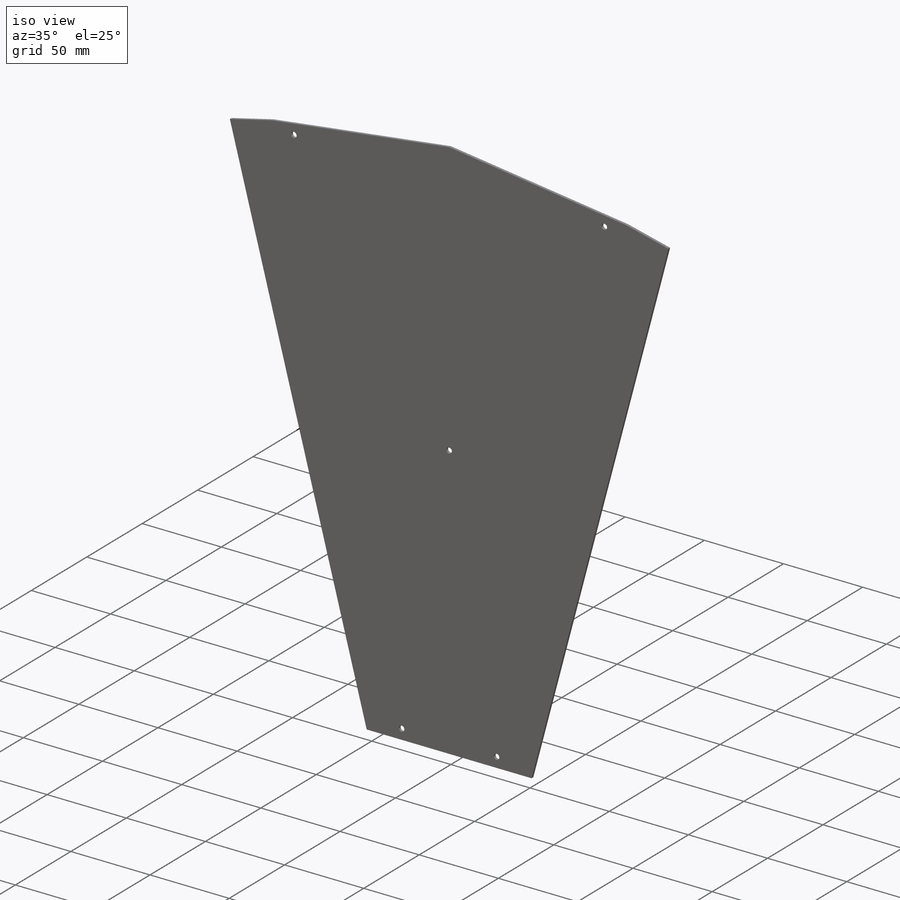
[diagram: iso view]
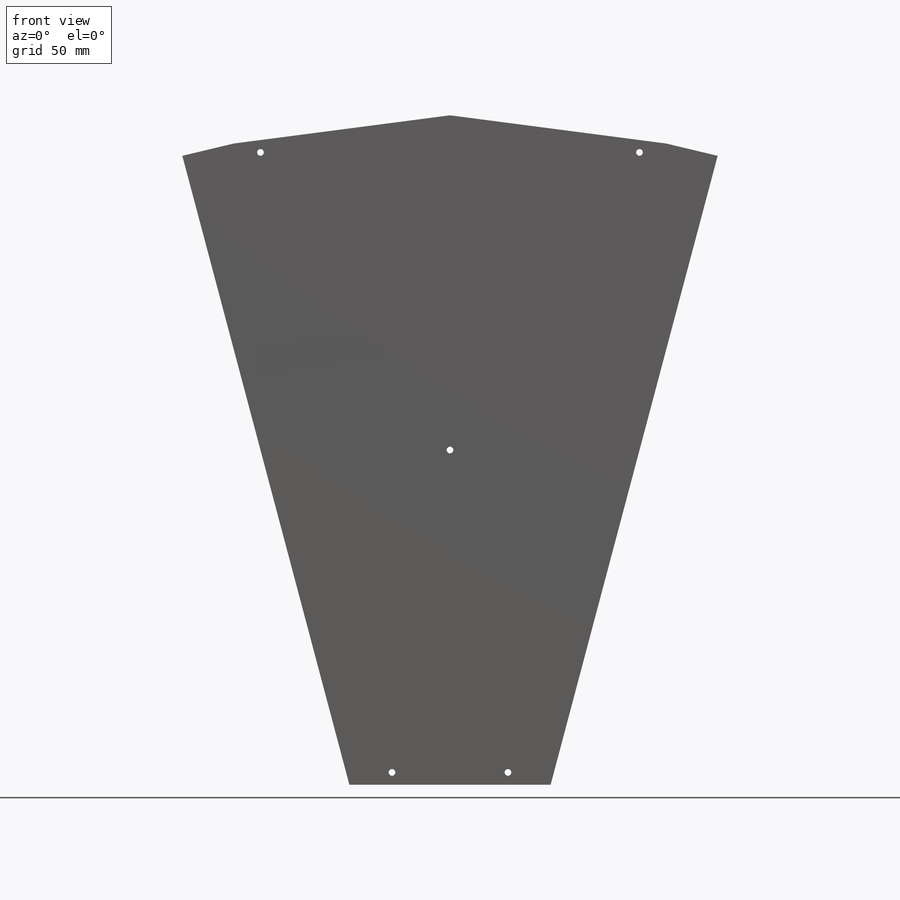
[diagram: front view]
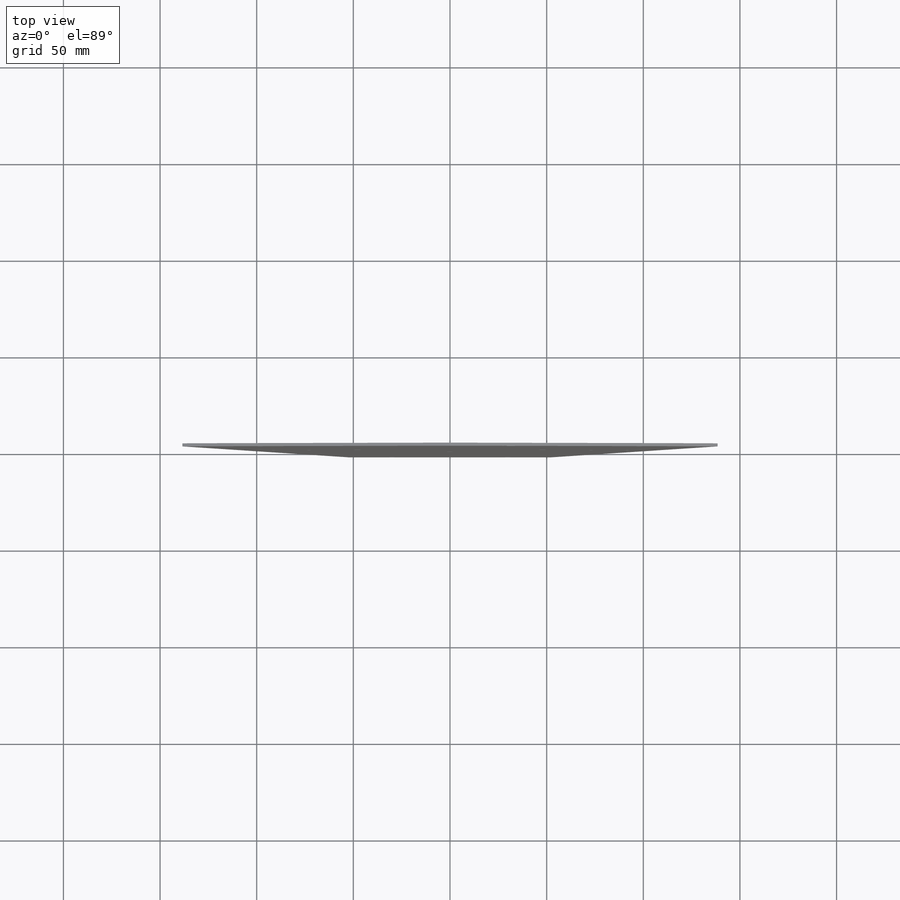
[diagram: top view]
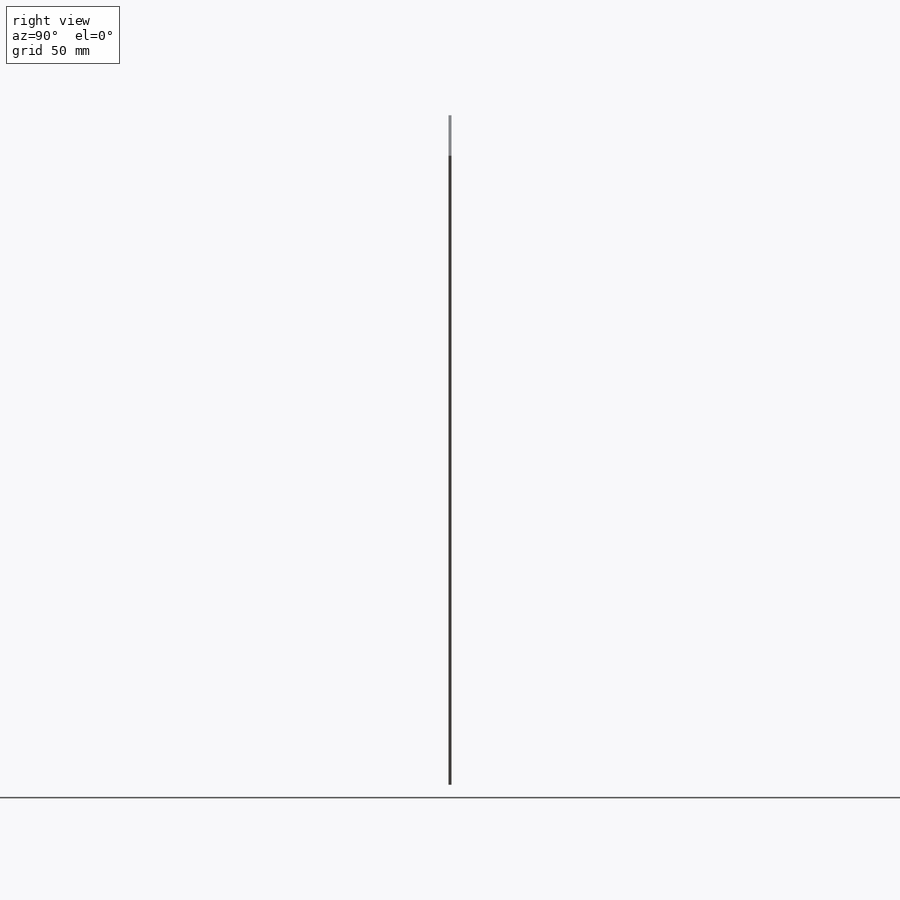
[diagram: right view]
SOLIDWORKS PART (.sldprt)
format: sldprt  version: not decoded by parser v0  size: 613,376 bytes
history: native  units: mm
features: sketch x5, plane x4, cut_extrude x3, material x1, extrude x1 (+13 scaffold rows collapsed)
feature tree (27):
  scaffold x13  (default folders/planes/origin — collapsed)
  material  "Material <not specified>"
  plane  "Plane1"
  plane  "Plane2"
  plane  "Plane3"
  plane  "Plane4"
  sketch  "Sketch1"  dims[c1.D1=542.3mm c1.D2=~331.628305mm c2.D2=29.75deg c2.D3=2.0mm c2.D4=196.0mm c2.D5=475.0mm]
  extrude  "Extrude1"  Depth=1.5875mm
  sketch  "Sketch5"  dims[c1.D1=~478.265057mm c2.D1=~11.968529deg]
  cut_extrude  "Extrude3"  [1 undecoded]
  sketch  "Sketch2"  dims[c1.D7=420.0mm c1.D8=430.0mm c1.D1=~153.634474mm c2.D1=11.25deg c2.D2=23.5mm c2.D3=212.0mm c2.D4=208.0mm c2.D5=~76.096026mm c3.D1=~76.096026mm c4.D1=11.25deg c4.D4=~76.096026mm c4.D5=~79.647053mm c5.D5=3.75deg c5.D6=212.0mm]
  sketch  "Sketch3"  dims[c1.D1=~19.98647mm c1.D3=~11.847948mm c1.D4=3.4544mm c1.D5=3.4544mm c1.D2=3.4544mm c2.D1=6.35mm c2.D2=6.35mm c2.D3=6.35mm c2.D5=350.0mm c3.D2=6.35mm c3.D5=60.0mm c4.D2=~39.529563mm]
  cut_extrude  "Extrude2"  [1 undecoded]
  sketch  "Sketch4"  dims[c1.D1=419.1mm c1.D2=431.8mm c1.D3=535.8mm c1.D4=535.8mm c1.D5=535.8mm c1.D6=~478.693238mm c2.D6=9.25deg c2.D7=485.0mm c3.D7=4.0deg c3.D8=~512.133743mm c4.D8=3.75deg c4.D9=15.0mm]
  cut_extrude  "Cut-Extrude1"  Depth=0.005mm
decode coverage: 7 of 9 modeling features carry decoded parameters
note: ~ marks probable driven/reference dimensions
note: 2 parameter values undecoded
note: suppression state not decoded; provenance and decode notes live in map.json
